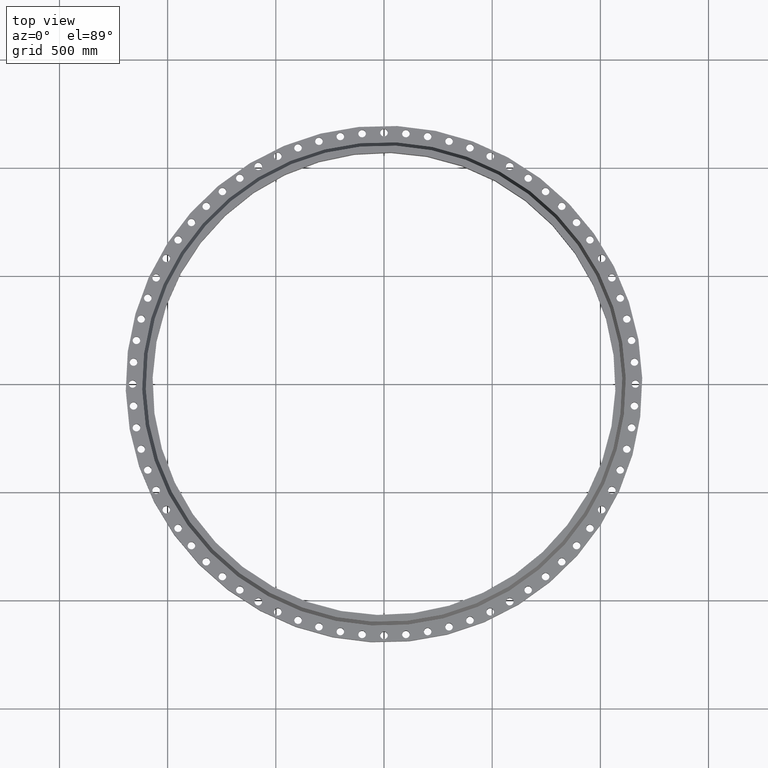
[diagram: clean part render]
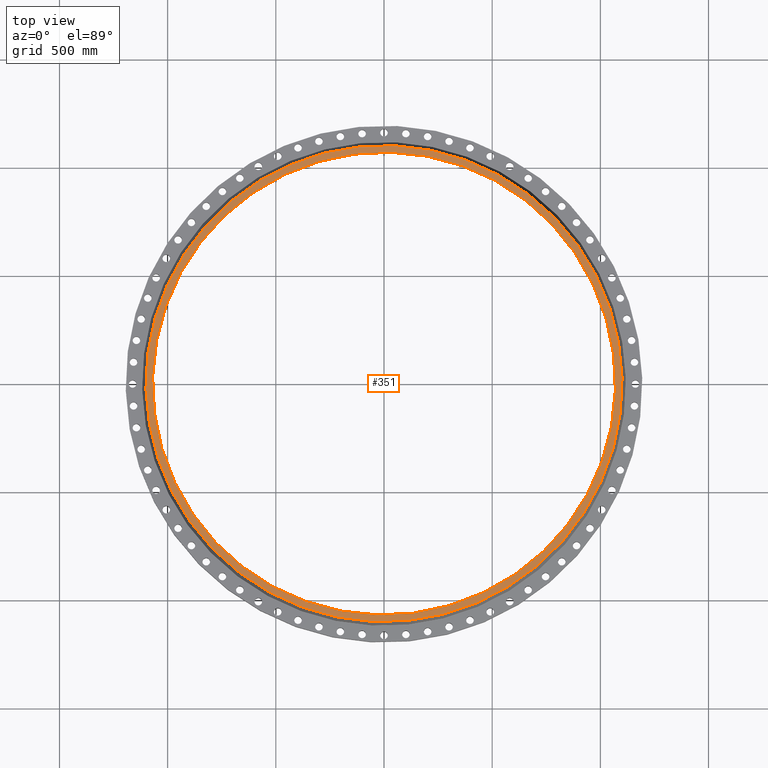
[diagram: same view with one face highlighted and labeled with its STEP entity id]
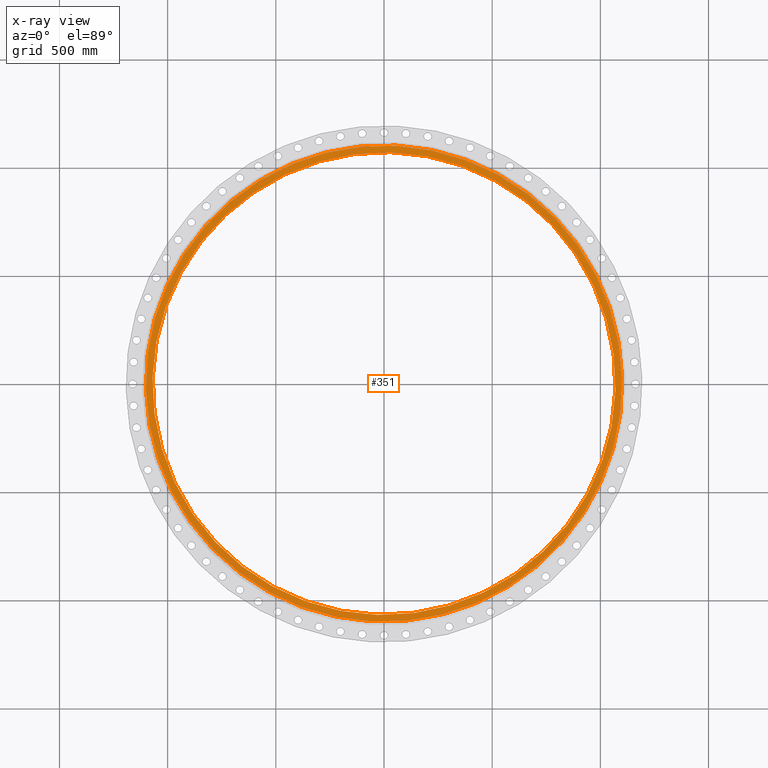
[diagram: x-ray of the same camera — body ghosted, the highlighted face saturated]
A machine part, top view. The second image highlights one B-rep face of the part: STEP entity #351.
The next image is the same camera in x-ray: the body ghosted, the highlighted face saturated — about 0% of this face is hidden behind the body in this view.
In plain terms, the highlighted planar face has unit normal (0, 0, -1).
Its self-contained STEP definition (entity closure, byte-faithful):
#295=AXIS2_PLACEMENT_3D('Circle Axis2P3D',#293,#294,$) ;
#314=AXIS2_PLACEMENT_3D('Circle Axis2P3D',#312,#313,$) ;
#327=AXIS2_PLACEMENT_3D('Plane Axis2P3D',#324,#325,#326) ;
#335=AXIS2_PLACEMENT_3D('Circle Axis2P3D',#333,#334,$) ;
#344=AXIS2_PLACEMENT_3D('Circle Axis2P3D',#342,#343,$) ;
#290=CARTESIAN_POINT('Vertex',(20.7747117492,38.027854779,8.50000000003)) ;
#293=CARTESIAN_POINT('Axis2P3D Location',(0.,0.,8.50000000003)) ;
#297=CARTESIAN_POINT('Vertex',(-20.7747117492,-38.027854779,8.50000000003)) ;
#312=CARTESIAN_POINT('Axis2P3D Location',(0.,0.,8.50000000003)) ;
#324=CARTESIAN_POINT('Axis2P3D Location',(0.,43.3325095898,8.50000000003)) ;
#333=CARTESIAN_POINT('Axis2P3D Location',(0.,0.,8.50000000003)) ;
#337=CARTESIAN_POINT('Vertex',(-20.1958008138,-36.9681654198,8.50000000003)) ;
#339=CARTESIAN_POINT('Vertex',(20.1958008138,36.9681654198,8.50000000003)) ;
#342=CARTESIAN_POINT('Axis2P3D Location',(0.,0.,8.50000000003)) ;
#294=DIRECTION('Axis2P3D Direction',(0.,0.,-0.0393700787402)) ;
#313=DIRECTION('Axis2P3D Direction',(0.,0.,-0.0393700787402)) ;
#325=DIRECTION('Axis2P3D Direction',(0.,0.,-0.0393700787402)) ;
#326=DIRECTION('Axis2P3D XDirection',(0.0393700787402,0.,0.)) ;
#334=DIRECTION('Axis2P3D Direction',(0.,0.,-0.0393700787402)) ;
#343=DIRECTION('Axis2P3D Direction',(0.,0.,-0.0393700787402)) ;
#330=ORIENTED_EDGE('',*,*,#299,.F.) ;
#331=ORIENTED_EDGE('',*,*,#316,.F.) ;
#348=ORIENTED_EDGE('',*,*,#341,.T.) ;
#349=ORIENTED_EDGE('',*,*,#346,.T.) ;
#350=FACE_BOUND('',#347,.T.) ;
#351=ADVANCED_FACE('PartBody',(#332,#350),#328,.F.) ;
#296=CIRCLE('generated circle',#295,43.3325095898) ;
#315=CIRCLE('generated circle',#314,43.3325095898) ;
#336=CIRCLE('generated circle',#335,42.1250000002) ;
#345=CIRCLE('generated circle',#344,42.1250000002) ;
#299=EDGE_CURVE('',#291,#298,#296,.T.) ;
#316=EDGE_CURVE('',#298,#291,#315,.T.) ;
#341=EDGE_CURVE('',#338,#340,#336,.T.) ;
#346=EDGE_CURVE('',#340,#338,#345,.T.) ;
#329=EDGE_LOOP('',(#330,#331)) ;
#347=EDGE_LOOP('',(#348,#349)) ;
#332=FACE_OUTER_BOUND('',#329,.T.) ;
#328=PLANE('',#327) ;
#291=VERTEX_POINT('',#290) ;
#298=VERTEX_POINT('',#297) ;
#338=VERTEX_POINT('',#337) ;
#340=VERTEX_POINT('',#339) ;